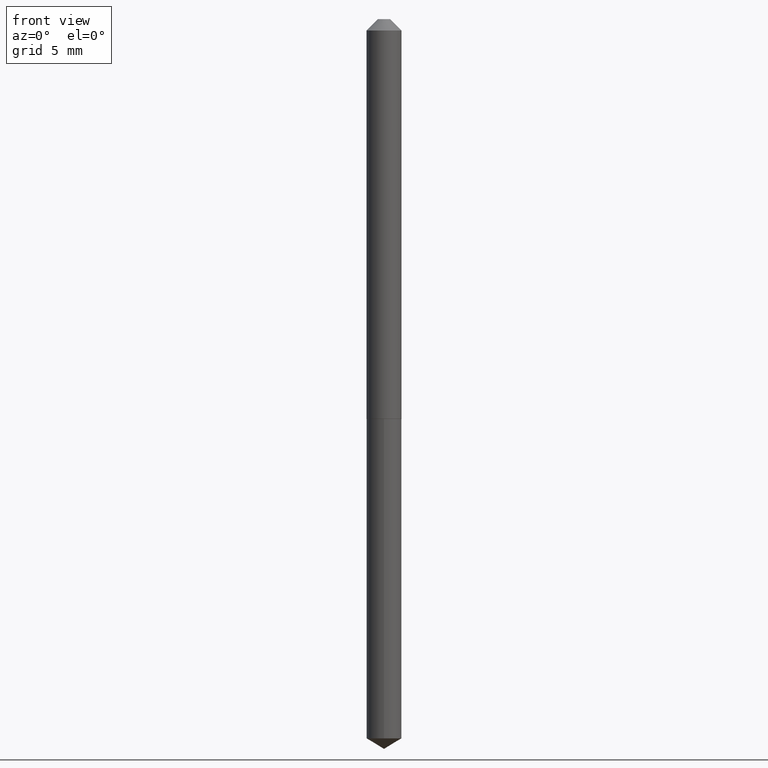
[diagram: clean part render]
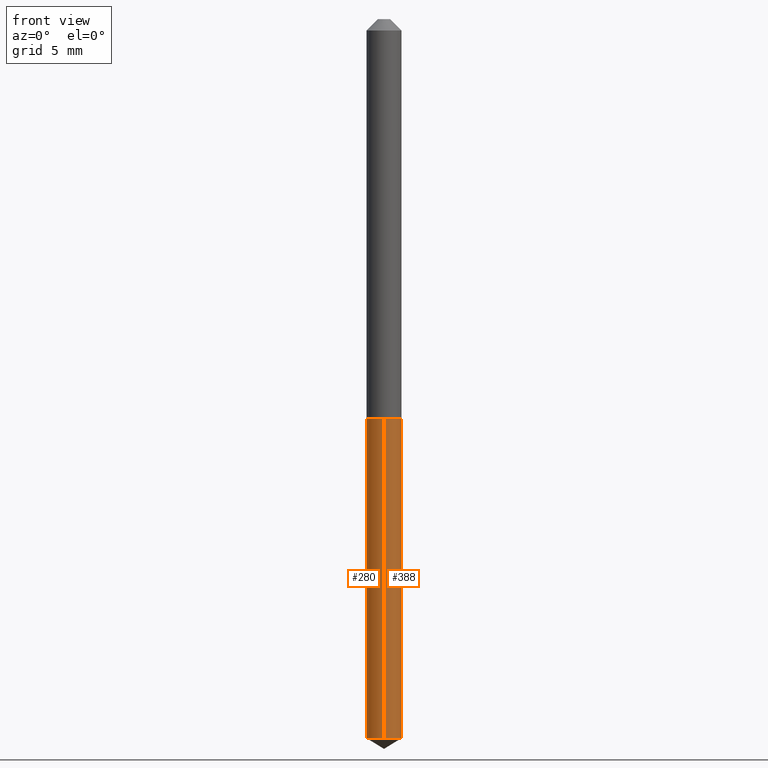
[diagram: same view with one multi-face feature highlighted, each face labeled with its STEP entity id]
A machine part, front view. The highlighted faces form ONE feature: a constant-radius fillet chain: 2 tangent blend faces with common blend radius 1.2192 mm. The faces share edges in the B-rep.
Their STEP definitions:
[1] entity #388 (Cylinder):
#4 = CARTESIAN_POINT ( 'NONE',  ( 3.410605131648961675E-16, 0.04799999999999310374, -1.971158690286678006 ) ) ;
#16 = ORIENTED_EDGE ( 'NONE', *, *, #320, .F. ) ;
#51 = AXIS2_PLACEMENT_3D ( 'NONE', #273, #186, #245 ) ;
#52 = VERTEX_POINT ( 'NONE', #335 ) ;
#58 = AXIS2_PLACEMENT_3D ( 'NONE', #250, #181, #183 ) ;
#68 = VERTEX_POINT ( 'NONE', #337 ) ;
#86 = LINE ( 'NONE', #302, #369 ) ;
#91 = ORIENTED_EDGE ( 'NONE', *, *, #169, .F. ) ;
#94 = EDGE_CURVE ( 'NONE', #360, #139, #131, .T. ) ;
#105 = ORIENTED_EDGE ( 'NONE', *, *, #94, .T. ) ;
#114 = CARTESIAN_POINT ( 'NONE',  ( 3.410605131648963647E-16, 0.04799999999999617073, -1.096000000000000085 ) ) ;
#126 = FACE_OUTER_BOUND ( 'NONE', #232, .T. ) ;
#131 = LINE ( 'NONE', #170, #175 ) ;
#139 = VERTEX_POINT ( 'NONE', #114 ) ;
#141 = DIRECTION ( 'NONE',  ( -2.445459932077537805E-29, 3.491494047070310150E-15, 1.000000000000000000 ) ) ;
#169 = EDGE_CURVE ( 'NONE', #52, #68, #86, .T. ) ;
#170 = CARTESIAN_POINT ( 'NONE',  ( 3.410605131648748190E-16, 0.04799999999999617073, -1.096000000000000085 ) ) ;
#172 = ORIENTED_EDGE ( 'NONE', *, *, #304, .T. ) ;
#175 = VECTOR ( 'NONE', #319, 39.37007874015748143 ) ;
#181 = DIRECTION ( 'NONE',  ( -2.445459932077537525E-29, 3.491494047070310150E-15, 1.000000000000000000 ) ) ;
#183 = DIRECTION ( 'NONE',  ( -6.982962677686265922E-15, -1.000000000000000000, 2.845674993400273939E-15 ) ) ;
#186 = DIRECTION ( 'NONE',  ( -2.445459932077537525E-29, 3.491494047070310150E-15, 1.000000000000000000 ) ) ;
#227 = CIRCLE ( 'NONE', #51, 0.04800000000000000100 ) ;
#232 = EDGE_LOOP ( 'NONE', ( #172, #105, #16, #91 ) ) ;
#245 = DIRECTION ( 'NONE',  ( -6.982962677686265922E-15, -1.000000000000000000, 5.691349986800547879E-15 ) ) ;
#250 = CARTESIAN_POINT ( 'NONE',  ( 2.680233811578909638E-29, -3.826663547372087284E-15, -1.096000000000000085 ) ) ;
#268 = CIRCLE ( 'NONE', #303, 0.04800000000000000100 ) ;
#273 = CARTESIAN_POINT ( 'NONE',  ( 4.820399322884435302E-29, -6.882274904749872337E-15, -1.971158690286677784 ) ) ;
#279 = DIRECTION ( 'NONE',  ( -6.982962677686265922E-15, -1.000000000000000000, 2.845674993400273939E-15 ) ) ;
#302 = CARTESIAN_POINT ( 'NONE',  ( -3.351822085289139434E-16, -0.04800000000000382433, -1.095999999999999863 ) ) ;
#303 = AXIS2_PLACEMENT_3D ( 'NONE', #390, #308, #279 ) ;
#304 = EDGE_CURVE ( 'NONE', #52, #360, #227, .T. ) ;
#308 = DIRECTION ( 'NONE',  ( -2.445459932077537525E-29, 3.491494047070310150E-15, 1.000000000000000000 ) ) ;
#319 = DIRECTION ( 'NONE',  ( -2.445459932077537805E-29, 3.491494047070310150E-15, 1.000000000000000000 ) ) ;
#320 = EDGE_CURVE ( 'NONE', #68, #139, #268, .T. ) ;
#335 = CARTESIAN_POINT ( 'NONE',  ( -3.351822085288923976E-16, -0.04800000000000687050, -1.971158690286677340 ) ) ;
#337 = CARTESIAN_POINT ( 'NONE',  ( -3.351822085289139434E-16, -0.04800000000000382433, -1.095999999999999863 ) ) ;
#360 = VERTEX_POINT ( 'NONE', #4 ) ;
#363 = CYLINDRICAL_SURFACE ( 'NONE', #58, 0.04800000000000000100 ) ;
#369 = VECTOR ( 'NONE', #141, 39.37007874015748143 ) ;
#388 = ADVANCED_FACE ( 'NONE', ( #126 ), #363, .T. ) ;
#390 = CARTESIAN_POINT ( 'NONE',  ( 2.680233811578909638E-29, -3.826663547372087284E-15, -1.096000000000000085 ) ) ;
[2] entity #280 (Cylinder):
#4 = CARTESIAN_POINT ( 'NONE',  ( 3.410605131648961675E-16, 0.04799999999999310374, -1.971158690286678006 ) ) ;
#6 = CIRCLE ( 'NONE', #374, 0.04800000000000000100 ) ;
#26 = CARTESIAN_POINT ( 'NONE',  ( 2.680233811578909638E-29, -3.826663547372087284E-15, -1.096000000000000085 ) ) ;
#50 = CIRCLE ( 'NONE', #240, 0.04800000000000000100 ) ;
#52 = VERTEX_POINT ( 'NONE', #335 ) ;
#66 = AXIS2_PLACEMENT_3D ( 'NONE', #341, #148, #275 ) ;
#68 = VERTEX_POINT ( 'NONE', #337 ) ;
#86 = LINE ( 'NONE', #302, #369 ) ;
#94 = EDGE_CURVE ( 'NONE', #360, #139, #131, .T. ) ;
#99 = CYLINDRICAL_SURFACE ( 'NONE', #66, 0.04800000000000000100 ) ;
#107 = EDGE_CURVE ( 'NONE', #360, #52, #50, .T. ) ;
#110 = ORIENTED_EDGE ( 'NONE', *, *, #276, .F. ) ;
#114 = CARTESIAN_POINT ( 'NONE',  ( 3.410605131648963647E-16, 0.04799999999999617073, -1.096000000000000085 ) ) ;
#117 = ORIENTED_EDGE ( 'NONE', *, *, #94, .F. ) ;
#123 = DIRECTION ( 'NONE',  ( -6.982962677686265922E-15, -1.000000000000000000, 2.845674993400273939E-15 ) ) ;
#131 = LINE ( 'NONE', #170, #175 ) ;
#139 = VERTEX_POINT ( 'NONE', #114 ) ;
#141 = DIRECTION ( 'NONE',  ( -2.445459932077537805E-29, 3.491494047070310150E-15, 1.000000000000000000 ) ) ;
#148 = DIRECTION ( 'NONE',  ( -2.445459932077537525E-29, 3.491494047070310150E-15, 1.000000000000000000 ) ) ;
#152 = FACE_OUTER_BOUND ( 'NONE', #384, .T. ) ;
#169 = EDGE_CURVE ( 'NONE', #52, #68, #86, .T. ) ;
#170 = CARTESIAN_POINT ( 'NONE',  ( 3.410605131648748190E-16, 0.04799999999999617073, -1.096000000000000085 ) ) ;
#175 = VECTOR ( 'NONE', #319, 39.37007874015748143 ) ;
#215 = ORIENTED_EDGE ( 'NONE', *, *, #107, .T. ) ;
#238 = DIRECTION ( 'NONE',  ( -2.445459932077537525E-29, 3.491494047070310150E-15, 1.000000000000000000 ) ) ;
#240 = AXIS2_PLACEMENT_3D ( 'NONE', #382, #238, #329 ) ;
#252 = DIRECTION ( 'NONE',  ( -2.445459932077537525E-29, 3.491494047070310150E-15, 1.000000000000000000 ) ) ;
#275 = DIRECTION ( 'NONE',  ( -6.982962677686265922E-15, -1.000000000000000000, 2.845674993400273939E-15 ) ) ;
#276 = EDGE_CURVE ( 'NONE', #139, #68, #6, .T. ) ;
#280 = ADVANCED_FACE ( 'NONE', ( #152 ), #99, .T. ) ;
#302 = CARTESIAN_POINT ( 'NONE',  ( -3.351822085289139434E-16, -0.04800000000000382433, -1.095999999999999863 ) ) ;
#319 = DIRECTION ( 'NONE',  ( -2.445459932077537805E-29, 3.491494047070310150E-15, 1.000000000000000000 ) ) ;
#329 = DIRECTION ( 'NONE',  ( -6.982962677686265922E-15, -1.000000000000000000, 5.691349986800547879E-15 ) ) ;
#335 = CARTESIAN_POINT ( 'NONE',  ( -3.351822085288923976E-16, -0.04800000000000687050, -1.971158690286677340 ) ) ;
#337 = CARTESIAN_POINT ( 'NONE',  ( -3.351822085289139434E-16, -0.04800000000000382433, -1.095999999999999863 ) ) ;
#341 = CARTESIAN_POINT ( 'NONE',  ( 2.680233811578909638E-29, -3.826663547372087284E-15, -1.096000000000000085 ) ) ;
#360 = VERTEX_POINT ( 'NONE', #4 ) ;
#369 = VECTOR ( 'NONE', #141, 39.37007874015748143 ) ;
#374 = AXIS2_PLACEMENT_3D ( 'NONE', #26, #252, #123 ) ;
#382 = CARTESIAN_POINT ( 'NONE',  ( 4.820399322884435302E-29, -6.882274904749872337E-15, -1.971158690286677784 ) ) ;
#384 = EDGE_LOOP ( 'NONE', ( #117, #215, #389, #110 ) ) ;
#389 = ORIENTED_EDGE ( 'NONE', *, *, #169, .T. ) ;